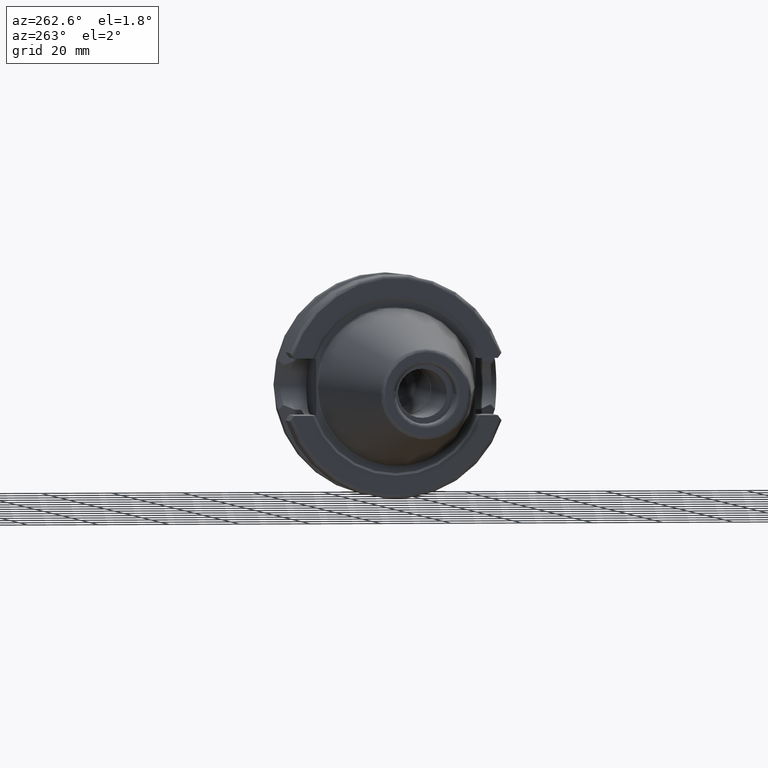
[diagram: clean part render]
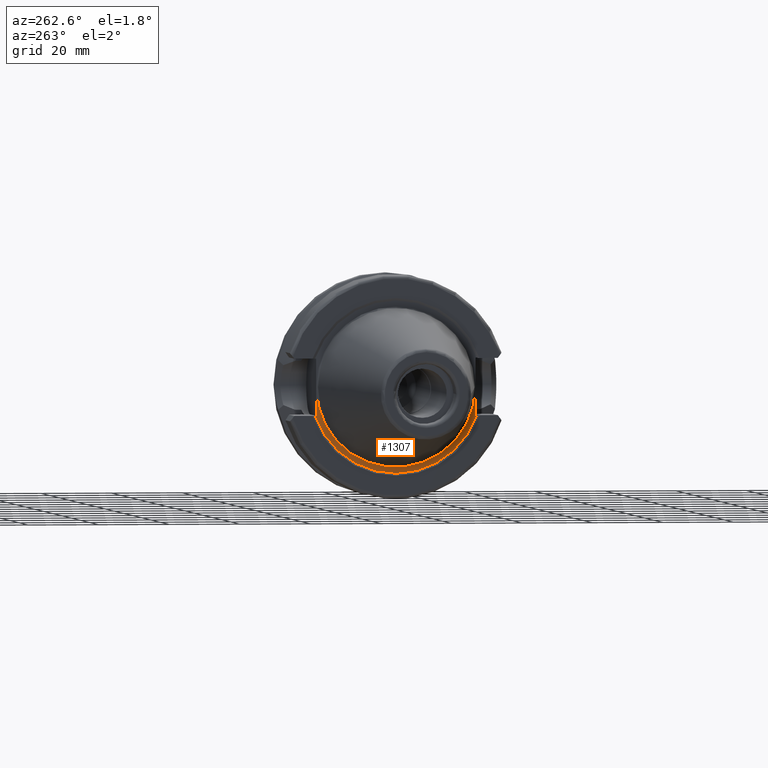
[diagram: same view with one face highlighted and labeled with its STEP entity id]
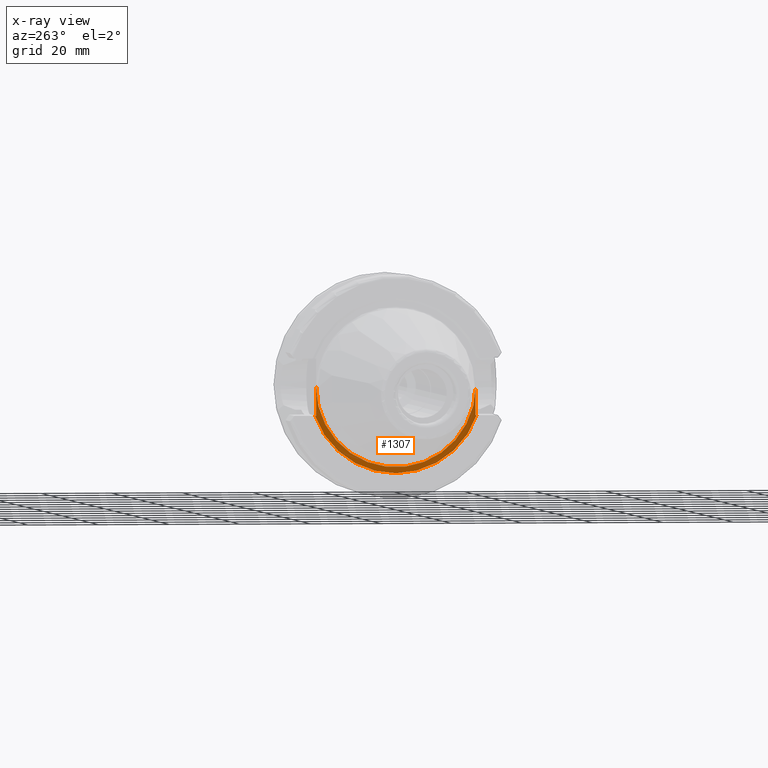
[diagram: x-ray of the same camera — body ghosted, the highlighted face saturated]
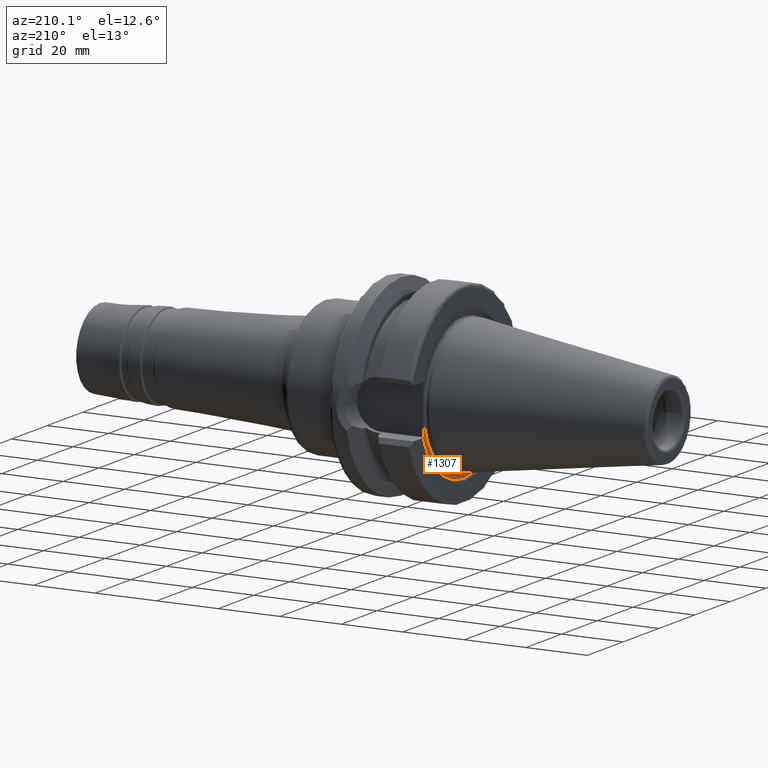
[diagram: same view with one face highlighted and labeled with its STEP entity id]
A machine part, auxiliary view. The second image highlights one B-rep face of the part: STEP entity #1307.
The next image is the same camera in x-ray: the body ghosted, the highlighted face saturated — about 0% of this face is hidden behind the body in this view.
A second angle (auxiliary view) of the same face is appended — the face is thin or edge-on in the first view.
In plain terms, the highlighted planar face has unit normal (-1, 0, 0).
Its self-contained STEP definition (entity closure, byte-faithful):
#93=PLANE('',#1484);
#127=LINE('',#2376,#196);
#142=LINE('',#2422,#211);
#149=LINE('',#2457,#218);
#157=LINE('',#2517,#226);
#196=VECTOR('',#1754,10.);
#211=VECTOR('',#1789,10.);
#218=VECTOR('',#1802,10.);
#226=VECTOR('',#1852,10.);
#323=FACE_OUTER_BOUND('',#408,.T.);
#408=EDGE_LOOP('',(#1162,#1163,#1164,#1165,#1166,#1167));
#490=CIRCLE('',#1464,24.3071796769724);
#498=CIRCLE('',#1485,22.6);
#588=VERTEX_POINT('',#2371);
#589=VERTEX_POINT('',#2375);
#603=VERTEX_POINT('',#2419);
#604=VERTEX_POINT('',#2421);
#611=VERTEX_POINT('',#2456);
#614=VERTEX_POINT('',#2466);
#748=EDGE_CURVE('',#589,#588,#127,.T.);
#769=EDGE_CURVE('',#604,#603,#142,.T.);
#780=EDGE_CURVE('',#611,#604,#149,.T.);
#787=EDGE_CURVE('',#611,#588,#490,.T.);
#803=EDGE_CURVE('',#614,#589,#157,.T.);
#807=EDGE_CURVE('',#603,#614,#498,.T.);
#1162=ORIENTED_EDGE('',*,*,#769,.T.);
#1163=ORIENTED_EDGE('',*,*,#807,.T.);
#1164=ORIENTED_EDGE('',*,*,#803,.T.);
#1165=ORIENTED_EDGE('',*,*,#748,.T.);
#1166=ORIENTED_EDGE('',*,*,#787,.F.);
#1167=ORIENTED_EDGE('',*,*,#780,.T.);
#1307=ADVANCED_FACE('',(#323),#93,.T.);
#1464=AXIS2_PLACEMENT_3D('',#2472,#1815,#1816);
#1484=AXIS2_PLACEMENT_3D('',#2530,#1862,#1863);
#1485=AXIS2_PLACEMENT_3D('',#2531,#1864,#1865);
#1754=DIRECTION('',(0.,1.,0.));
#1789=DIRECTION('',(0.,0.,1.));
#1802=DIRECTION('',(0.,1.,0.));
#1815=DIRECTION('center_axis',(1.,0.,0.));
#1816=DIRECTION('ref_axis',(0.,0.,-1.));
#1852=DIRECTION('',(0.,0.,-1.));
#1862=DIRECTION('center_axis',(-1.,0.,0.));
#1863=DIRECTION('ref_axis',(0.,0.,1.));
#1864=DIRECTION('center_axis',(1.,0.,0.));
#1865=DIRECTION('ref_axis',(0.,0.,-1.));
#2371=CARTESIAN_POINT('',(1.4,22.9354852542653,-8.05));
#2375=CARTESIAN_POINT('',(1.4,22.6,-8.05));
#2376=CARTESIAN_POINT('',(1.4,23.4535898384862,-8.05));
#2419=CARTESIAN_POINT('',(1.4,-22.6,0.));
#2421=CARTESIAN_POINT('',(1.4,-22.6,-8.05));
#2422=CARTESIAN_POINT('',(1.4,-22.6,2.77555756156289E-16));
#2456=CARTESIAN_POINT('',(1.4,-22.9354852542653,-8.05));
#2457=CARTESIAN_POINT('',(1.4,0.853589838486224,-8.05));
#2466=CARTESIAN_POINT('',(1.4,22.6,0.));
#2472=CARTESIAN_POINT('Origin',(1.4,0.,0.));
#2517=CARTESIAN_POINT('',(1.4,22.6,2.77555756156289E-16));
#2530=CARTESIAN_POINT('Origin',(1.4,24.3071796769724,0.));
#2531=CARTESIAN_POINT('Origin',(1.4,0.,0.));